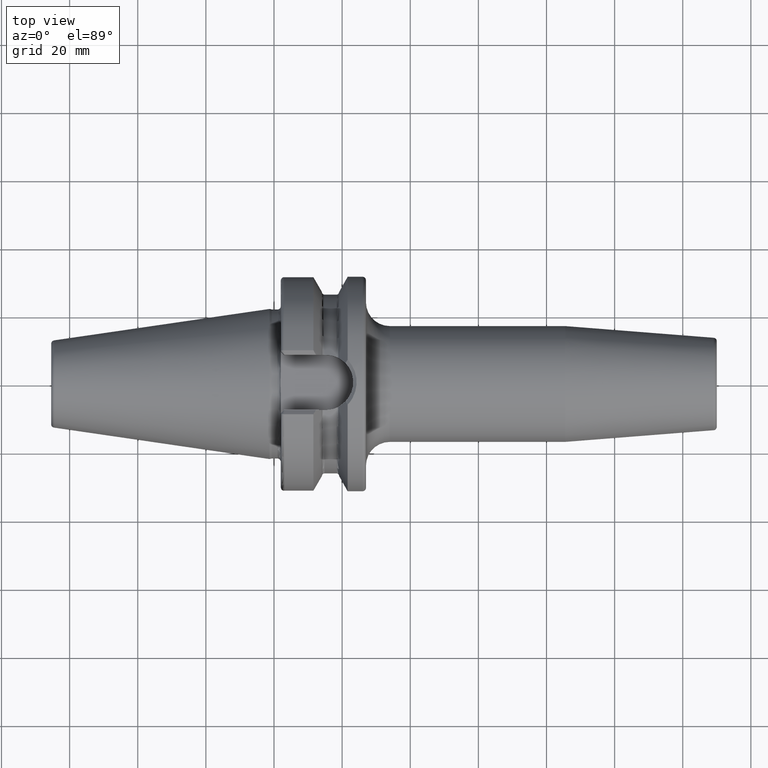
[diagram: clean part render]
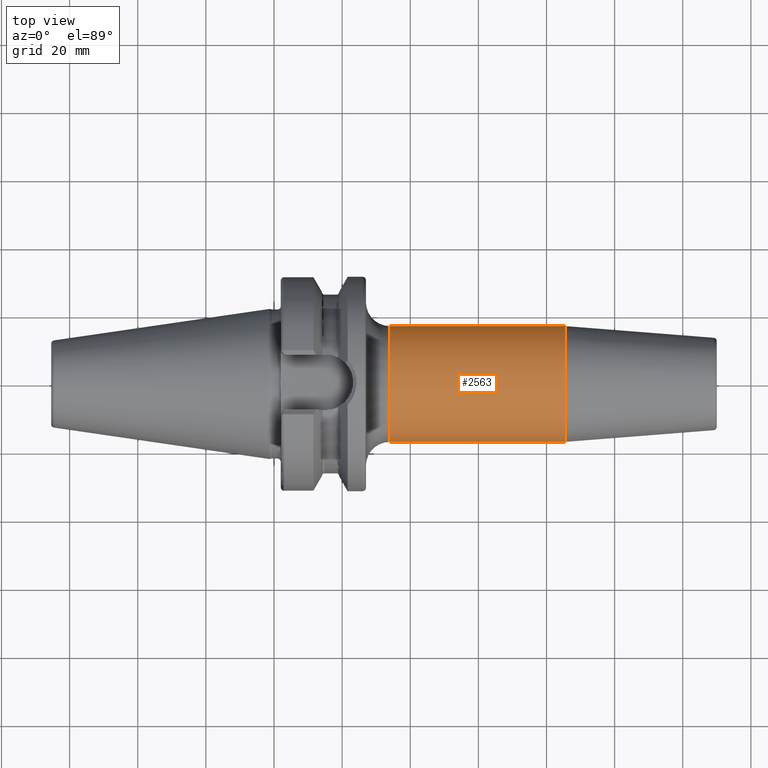
[diagram: same view with one face highlighted and labeled with its STEP entity id]
A machine part, top view. The second image highlights one B-rep face of the part: STEP entity #2563.
In plain terms, the highlighted cylindrical surface (partial cylindrical patch) has radius 17 mm, axis along (1, 0, 0).
Its self-contained STEP definition (entity closure, byte-faithful):
#856=CARTESIAN_POINT('',(3.4E1,0.E0,0.E0));
#857=DIRECTION('',(1.E0,0.E0,0.E0));
#858=DIRECTION('',(0.E0,1.E0,0.E0));
#859=AXIS2_PLACEMENT_3D('',#856,#857,#858);
#861=CARTESIAN_POINT('',(8.552828342339E1,0.E0,0.E0));
#862=DIRECTION('',(1.E0,0.E0,0.E0));
#863=DIRECTION('',(0.E0,1.E0,0.E0));
#864=AXIS2_PLACEMENT_3D('',#861,#862,#863);
#871=DIRECTION('',(-1.E0,0.E0,-2.869926672497E-14));
#872=VECTOR('',#871,5.152828342339E1);
#873=CARTESIAN_POINT('',(8.552828342339E1,-1.7E1,0.E0));
#874=LINE('',#873,#872);
#880=DIRECTION('',(-1.E0,0.E0,2.865240327902E-14));
#881=VECTOR('',#880,5.152828342339E1);
#882=CARTESIAN_POINT('',(8.552828342339E1,1.7E1,0.E0));
#883=LINE('',#882,#881);
#1405=CARTESIAN_POINT('',(3.4E1,-1.7E1,0.E0));
#1406=CARTESIAN_POINT('',(3.4E1,1.7E1,0.E0));
#1407=VERTEX_POINT('',#1405);
#1408=VERTEX_POINT('',#1406);
#1409=CARTESIAN_POINT('',(8.552828342339E1,1.7E1,0.E0));
#1410=VERTEX_POINT('',#1409);
#1411=CARTESIAN_POINT('',(8.552828342339E1,-1.7E1,0.E0));
#1412=VERTEX_POINT('',#1411);
#2549=CARTESIAN_POINT('',(2.185E1,0.E0,0.E0));
#2550=DIRECTION('',(1.E0,0.E0,0.E0));
#2551=DIRECTION('',(0.E0,-1.E0,0.E0));
#2552=AXIS2_PLACEMENT_3D('',#2549,#2550,#2551);
#2553=CYLINDRICAL_SURFACE('',#2552,1.7E1);
#2554=ORIENTED_EDGE('',*,*,#2543,.F.);
#2556=ORIENTED_EDGE('',*,*,#2555,.F.);
#2558=ORIENTED_EDGE('',*,*,#2557,.T.);
#2560=ORIENTED_EDGE('',*,*,#2559,.T.);
#2561=EDGE_LOOP('',(#2554,#2556,#2558,#2560));
#2562=FACE_OUTER_BOUND('',#2561,.F.);
#2563=ADVANCED_FACE('',(#2562),#2553,.T.);
#860=CIRCLE('',#859,1.7E1);
#865=CIRCLE('',#864,1.7E1);
#2543=EDGE_CURVE('',#1408,#1407,#860,.T.);
#2555=EDGE_CURVE('',#1410,#1408,#883,.T.);
#2557=EDGE_CURVE('',#1410,#1412,#865,.T.);
#2559=EDGE_CURVE('',#1412,#1407,#874,.T.);